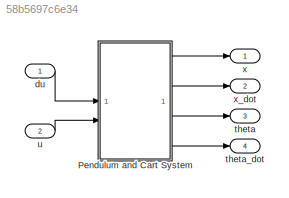
MODEL slx_58b5697c6e34
KIND model
CONFIG AbsTol = auto
CONFIG EnableMultiTasking = on
CONFIG FixedStep = auto
CONFIG MaxStep = auto
CONFIG MinStep = auto
CONFIG RelTol = 1e-3
CONFIG SampleTimeConstraint = Unconstrained
CONFIG SolverName = ode45
CONFIG StartTime = 0.0
CONFIG StopTime = 10.0
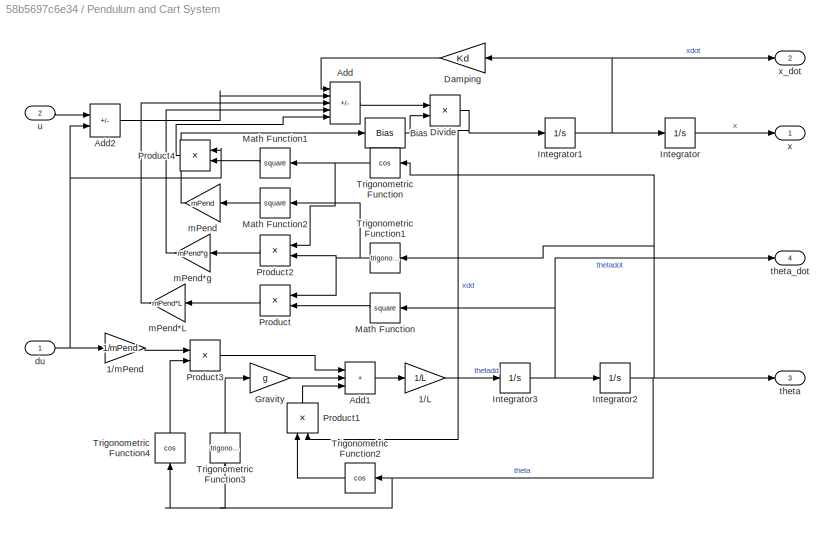
BLOCK [SubSystem] Pendulum and Cart System
BLOCK [Gain] Pendulum and Cart System/1//L
  Gain = 1/L
BLOCK [Gain] Pendulum and Cart System/1//mPend
  Gain = 1/mPend
  NameLocation = top
BLOCK [Sum] Pendulum and Cart System/Add
  IconShape = rectangular
  Inputs = -+-++
BLOCK [Sum] Pendulum and Cart System/Add1
  IconShape = rectangular
  Inputs = +++
BLOCK [Sum] Pendulum and Cart System/Add2
  IconShape = rectangular
  Inputs = +-
BLOCK [Bias] Pendulum and Cart System/Bias
  Bias = mCart
  SaturateOnIntegerOverflow = off
BLOCK [Gain] Pendulum and Cart System/Damping
  Gain = Kd
  NameLocation = top
BLOCK [Product] Pendulum and Cart System/Divide
  Inputs = */
BLOCK [Gain] Pendulum and Cart System/Gravity
  Gain = g
BLOCK [Integrator] Pendulum and Cart System/Integrator
  ContinuousStateAttributes = 'x'
BLOCK [Integrator] Pendulum and Cart System/Integrator1
  ContinuousStateAttributes = 'xdot'
BLOCK [Integrator] Pendulum and Cart System/Integrator2
  ContinuousStateAttributes = 'theta'
BLOCK [Integrator] Pendulum and Cart System/Integrator3
  ContinuousStateAttributes = 'thetadot'
BLOCK [Math] Pendulum and Cart System/Math Function
  Operator = square
  SignedPower = on
BLOCK [Math] Pendulum and Cart System/Math Function1
  Operator = square
  SignedPower = on
BLOCK [Math] Pendulum and Cart System/Math Function2
  Operator = square
  SignedPower = on
BLOCK [Product] Pendulum and Cart System/Product
  NameLocation = top
BLOCK [Product] Pendulum and Cart System/Product1
  NameLocation = right
BLOCK [Product] Pendulum and Cart System/Product2
  NameLocation = top
BLOCK [Product] Pendulum and Cart System/Product3
BLOCK [Product] Pendulum and Cart System/Product4
  NameLocation = top
BLOCK [Trigonometry] Pendulum and Cart System/Trigonometric Function
  NameLocation = top
  Operator = cos
BLOCK [Trigonometry] Pendulum and Cart System/Trigonometric Function1
  NameLocation = top
BLOCK [Trigonometry] Pendulum and Cart System/Trigonometric Function2
  NameLocation = top
  Operator = cos
BLOCK [Trigonometry] Pendulum and Cart System/Trigonometric Function3
  NameLocation = right
BLOCK [Trigonometry] Pendulum and Cart System/Trigonometric Function4
  NameLocation = right
  Operator = cos
BLOCK [Inport] Pendulum and Cart System/du
BLOCK [Gain] Pendulum and Cart System/mPend
  Gain = mPend
BLOCK [Gain] Pendulum and Cart System/mPend*L
  Gain = mPend*L
BLOCK [Gain] Pendulum and Cart System/mPend*g
  Gain = mPend*g
BLOCK [Outport] Pendulum and Cart System/theta
  Port = 3
  VectorParamsAs1DForOutWhenUnconnected = off
BLOCK [Outport] Pendulum and Cart System/theta_dot
  Port = 4
  VectorParamsAs1DForOutWhenUnconnected = off
BLOCK [Inport] Pendulum and Cart System/u
  Port = 2
BLOCK [Outport] Pendulum and Cart System/x
  VectorParamsAs1DForOutWhenUnconnected = off
BLOCK [Outport] Pendulum and Cart System/x_dot
  Port = 2
  VectorParamsAs1DForOutWhenUnconnected = off
BLOCK [Inport] du
BLOCK [Outport] theta
  Port = 3
  VectorParamsAs1DForOutWhenUnconnected = off
BLOCK [Outport] theta_dot
  Port = 4
  VectorParamsAs1DForOutWhenUnconnected = off
BLOCK [Inport] u
  Port = 2
BLOCK [Outport] x
  VectorParamsAs1DForOutWhenUnconnected = off
BLOCK [Outport] x_dot
  Port = 2
  VectorParamsAs1DForOutWhenUnconnected = off
LINE Pendulum and Cart System/1//L:1 -> Pendulum and Cart System/Integrator3:1
LINE Pendulum and Cart System/1//mPend:1 -> Pendulum and Cart System/Product3:1
LINE Pendulum and Cart System/Add1:1 -> Pendulum and Cart System/1//L:1
LINE Pendulum and Cart System/Add2:1 -> Pendulum and Cart System/Add:2
LINE Pendulum and Cart System/Add:1 -> Pendulum and Cart System/Divide:1
LINE Pendulum and Cart System/Bias:1 -> Pendulum and Cart System/Divide:2
LINE Pendulum and Cart System/Damping:1 -> Pendulum and Cart System/Add:1
NET Pendulum and Cart System/Divide:1 -> Pendulum and Cart System/Integrator1:1, Pendulum and Cart System/Product1:2
LINE Pendulum and Cart System/Gravity:1 -> Pendulum and Cart System/Add1:2
NET Pendulum and Cart System/Integrator1:1 -> Pendulum and Cart System/Damping:1, Pendulum and Cart System/Integrator:1, Pendulum and Cart System/x_dot:1
NET Pendulum and Cart System/Integrator2:1 -> Pendulum and Cart System/Trigonometric Function1:1, Pendulum and Cart System/Trigonometric Function2:1, Pendulum and Cart System/Trigonometric Function3:1, Pendulum and Cart System/Trigonometric Function4:1, Pendulum and Cart System/Trigonometric Function:1, Pendulum and Cart System/theta:1
NET Pendulum and Cart System/Integrator3:1 -> Pendulum and Cart System/Integrator2:1, Pendulum and Cart System/Math Function:1, Pendulum and Cart System/theta_dot:1
LINE Pendulum and Cart System/Integrator:1 -> Pendulum and Cart System/x:1
LINE Pendulum and Cart System/Math Function1:1 -> Pendulum and Cart System/Product4:2
LINE Pendulum and Cart System/Math Function2:1 -> Pendulum and Cart System/mPend:1
LINE Pendulum and Cart System/Math Function:1 -> Pendulum and Cart System/Product:2
LINE Pendulum and Cart System/Product1:1 -> Pendulum and Cart System/Add1:3
LINE Pendulum and Cart System/Product2:1 -> Pendulum and Cart System/mPend*g:1
LINE Pendulum and Cart System/Product3:1 -> Pendulum and Cart System/Add1:1
LINE Pendulum and Cart System/Product4:1 -> Pendulum and Cart System/Add:5
LINE Pendulum and Cart System/Product:1 -> Pendulum and Cart System/mPend*L:1
NET Pendulum and Cart System/Trigonometric Function1:1 -> Pendulum and Cart System/Math Function2:1, Pendulum and Cart System/Product2:2, Pendulum and Cart System/Product:1
LINE Pendulum and Cart System/Trigonometric Function2:1 -> Pendulum and Cart System/Product1:1
LINE Pendulum and Cart System/Trigonometric Function3:1 -> Pendulum and Cart System/Gravity:1
LINE Pendulum and Cart System/Trigonometric Function4:1 -> Pendulum and Cart System/Product3:2
NET Pendulum and Cart System/Trigonometric Function:1 -> Pendulum and Cart System/Math Function1:1, Pendulum and Cart System/Product2:1
NET Pendulum and Cart System/du:1 -> Pendulum and Cart System/1//mPend:1, Pendulum and Cart System/Add2:2, Pendulum and Cart System/Product4:1
LINE Pendulum and Cart System/mPend*L:1 -> Pendulum and Cart System/Add:3
LINE Pendulum and Cart System/mPend*g:1 -> Pendulum and Cart System/Add:4
LINE Pendulum and Cart System/mPend:1 -> Pendulum and Cart System/Bias:1
LINE Pendulum and Cart System/u:1 -> Pendulum and Cart System/Add2:1
LINE Pendulum and Cart System:1 -> x:1
LINE Pendulum and Cart System:2 -> x_dot:1
LINE Pendulum and Cart System:3 -> theta:1
LINE Pendulum and Cart System:4 -> theta_dot:1
LINE du:1 -> Pendulum and Cart System:1
LINE u:1 -> Pendulum and Cart System:2
note: NET lines group one-source signal fan-out (src -> all destinations, sorted); 1:1 wires keep LINE
